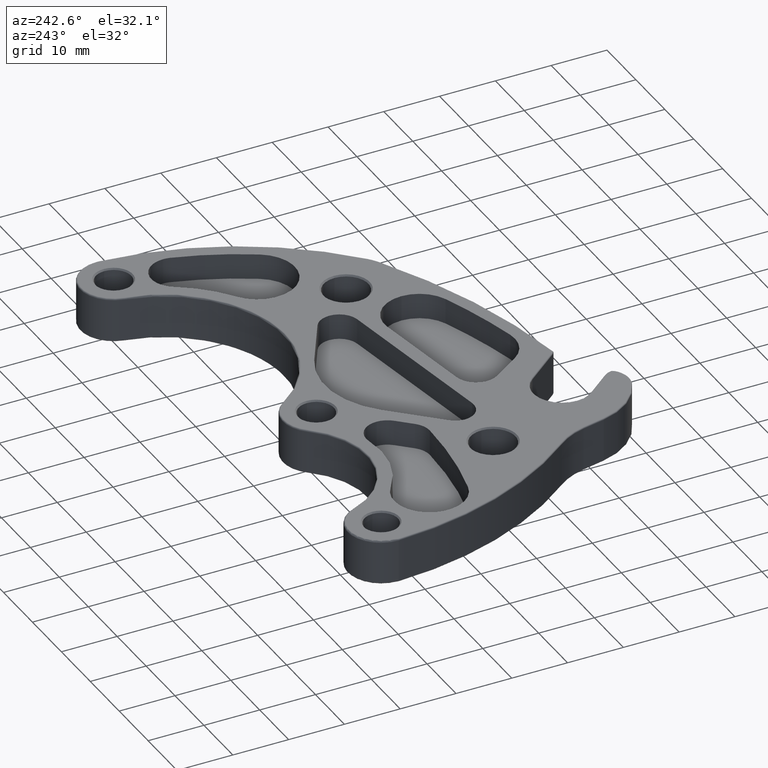
[diagram: clean part render]
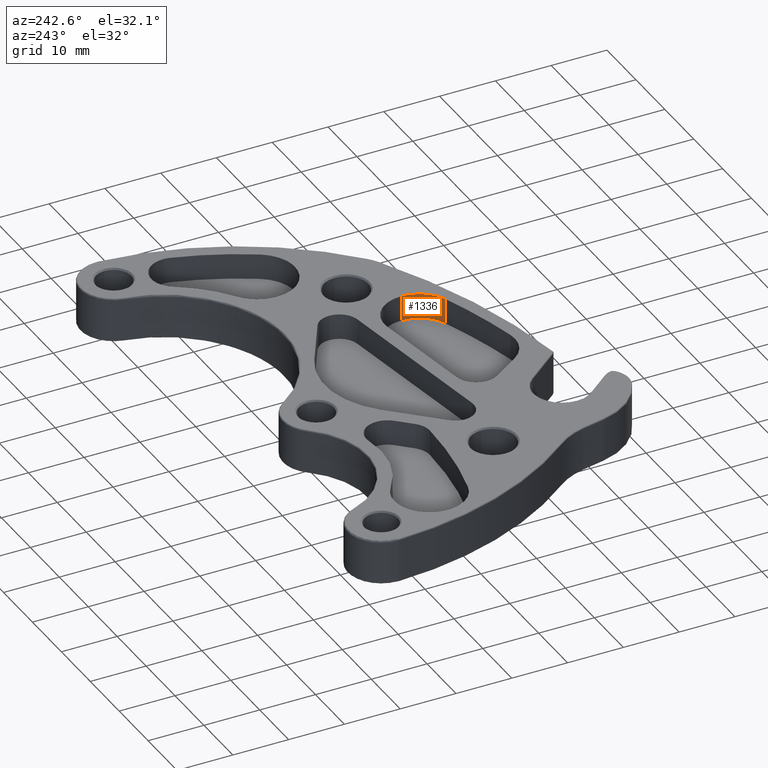
[diagram: same view with one face highlighted and labeled with its STEP entity id]
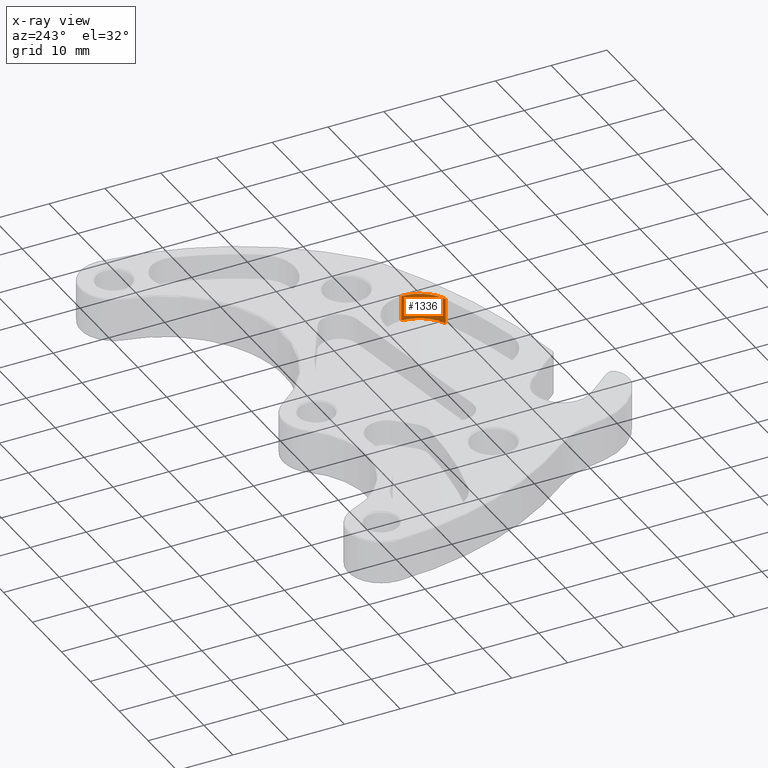
[diagram: x-ray of the same camera — body ghosted, the highlighted face saturated]
A machine part, auxiliary view. The second image highlights one B-rep face of the part: STEP entity #1336.
The next image is the same camera in x-ray: the body ghosted, the highlighted face saturated — about 0% of this face is hidden behind the body in this view.
In plain terms, the highlighted cylindrical surface (partial cylindrical patch) has radius 6.2615 mm, axis along (-0, 0, 1).
Its self-contained STEP definition (entity closure, byte-faithful):
#101 = EDGE_CURVE ( 'NONE', #1924, #2368, #484, .T. ) ;
#127 = ORIENTED_EDGE ( 'NONE', *, *, #1160, .F. ) ;
#326 = ORIENTED_EDGE ( 'NONE', *, *, #2541, .T. ) ;
#406 = DIRECTION ( 'NONE',  ( 1.000000000000000000, 0.0000000000000000000, 0.0000000000000000000 ) ) ;
#408 = LINE ( 'NONE', #2745, #2446 ) ;
#436 = CYLINDRICAL_SURFACE ( 'NONE', #2163, 0.2465167982770000155 ) ;
#450 = CIRCLE ( 'NONE', #2128, 0.2465167982770000155 ) ;
#484 = CIRCLE ( 'NONE', #2939, 0.2465167982770000155 ) ;
#501 = ORIENTED_EDGE ( 'NONE', *, *, #3582, .T. ) ;
#558 = LINE ( 'NONE', #938, #1360 ) ;
#565 = VERTEX_POINT ( 'NONE', #893 ) ;
#639 = CARTESIAN_POINT ( 'NONE',  ( 2.345576810415005653, -6.294339333500996503, 0.1349999999999997591 ) ) ;
#672 = CARTESIAN_POINT ( 'NONE',  ( 2.345576810415005653, -6.294339333500996503, 0.3149999999999991696 ) ) ;
#825 = DIRECTION ( 'NONE',  ( -9.013352139732279557E-31, 3.389636702121541407E-30, 1.000000000000000000 ) ) ;
#893 = CARTESIAN_POINT ( 'NONE',  ( 2.592093608692005891, -6.294339333500996503, 0.3149999999999991696 ) ) ;
#908 = DIRECTION ( 'NONE',  ( 1.000000000000000000, 0.0000000000000000000, 0.0000000000000000000 ) ) ;
#938 = CARTESIAN_POINT ( 'NONE',  ( 2.592093608692005891, -6.294339333500996503, 0.1349999999999997591 ) ) ;
#955 = DIRECTION ( 'NONE',  ( 1.000000000000000000, 0.0000000000000000000, 0.0000000000000000000 ) ) ;
#1160 = EDGE_CURVE ( 'NONE', #2368, #565, #558, .T. ) ;
#1255 = VERTEX_POINT ( 'NONE', #1680 ) ;
#1336 = ADVANCED_FACE ( 'NONE', ( #1997 ), #436, .F. ) ;
#1360 = VECTOR ( 'NONE', #2245, 39.37007874015748143 ) ;
#1506 = CARTESIAN_POINT ( 'NONE',  ( 2.433185624999982810, -6.524763350130722728, 0.1349999999999997868 ) ) ;
#1510 = DIRECTION ( 'NONE',  ( -9.013352139732279557E-31, 3.389636702121541407E-30, 1.000000000000000000 ) ) ;
#1680 = CARTESIAN_POINT ( 'NONE',  ( 2.433185624999982810, -6.524763350130722728, 0.3149999999999994471 ) ) ;
#1683 = EDGE_LOOP ( 'NONE', ( #127, #3166, #501, #326 ) ) ;
#1816 = CARTESIAN_POINT ( 'NONE',  ( 2.345576810415005653, -6.294339333500996503, 0.1349999999999997591 ) ) ;
#1924 = VERTEX_POINT ( 'NONE', #1506 ) ;
#1997 = FACE_OUTER_BOUND ( 'NONE', #1683, .T. ) ;
#2128 = AXIS2_PLACEMENT_3D ( 'NONE', #672, #2601, #955 ) ;
#2163 = AXIS2_PLACEMENT_3D ( 'NONE', #639, #1510, #406 ) ;
#2245 = DIRECTION ( 'NONE',  ( -9.013352139732279557E-31, 3.389636702121541407E-30, 1.000000000000000000 ) ) ;
#2368 = VERTEX_POINT ( 'NONE', #2518 ) ;
#2446 = VECTOR ( 'NONE', #825, 39.37007874015748143 ) ;
#2518 = CARTESIAN_POINT ( 'NONE',  ( 2.592093608692005891, -6.294339333500996503, 0.1349999999999997591 ) ) ;
#2541 = EDGE_CURVE ( 'NONE', #1255, #565, #450, .T. ) ;
#2601 = DIRECTION ( 'NONE',  ( -9.013352139732279557E-31, 3.389636702121541407E-30, 1.000000000000000000 ) ) ;
#2745 = CARTESIAN_POINT ( 'NONE',  ( 2.433185624999982810, -6.524763350130722728, 0.1349999999999997868 ) ) ;
#2939 = AXIS2_PLACEMENT_3D ( 'NONE', #1816, #3380, #908 ) ;
#3166 = ORIENTED_EDGE ( 'NONE', *, *, #101, .F. ) ;
#3380 = DIRECTION ( 'NONE',  ( -9.013352139732279557E-31, 3.389636702121541407E-30, 1.000000000000000000 ) ) ;
#3582 = EDGE_CURVE ( 'NONE', #1924, #1255, #408, .T. ) ;